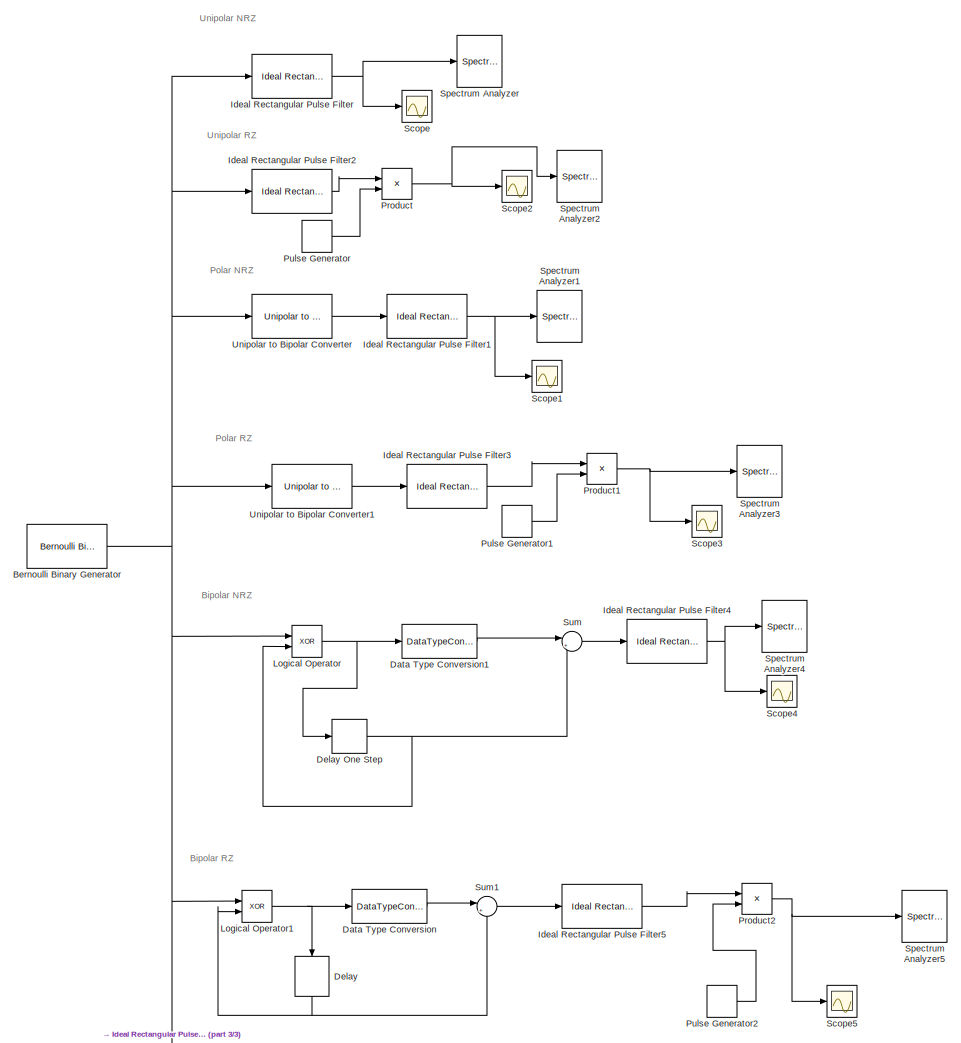
[diagram: root canvas - part 1/3, middle right region]
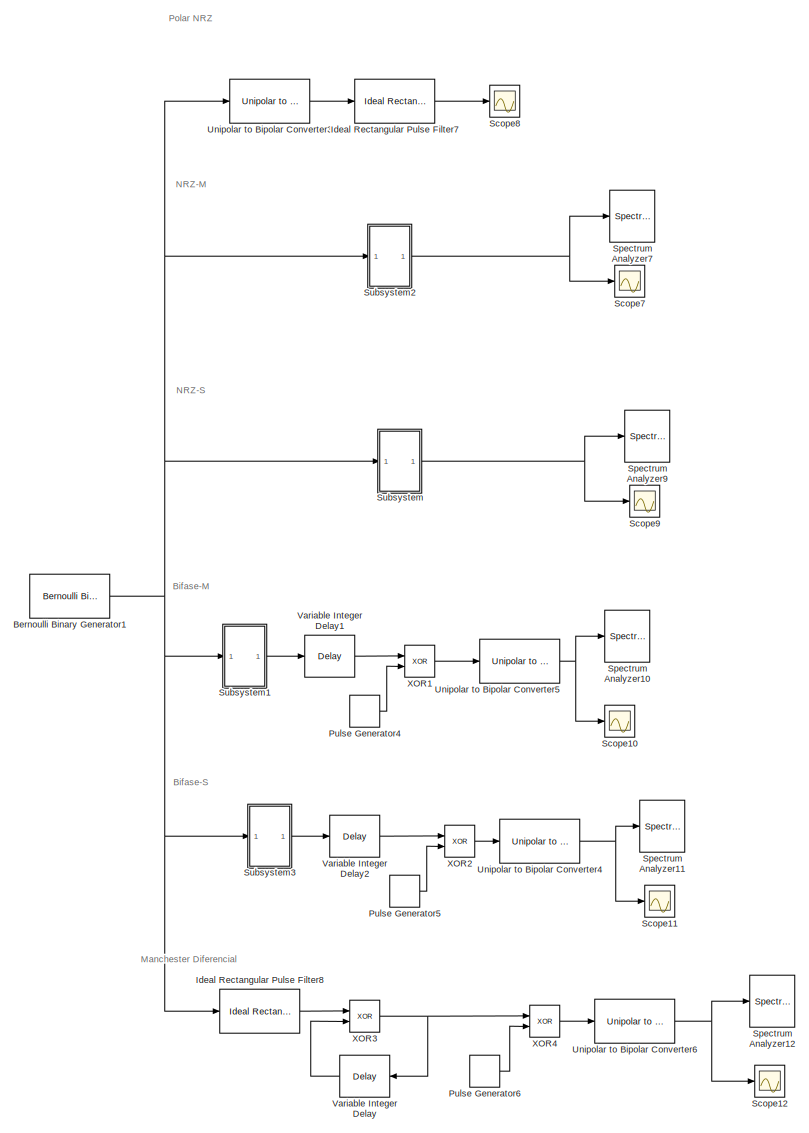
[diagram: root canvas - part 2/3, left side, full height]
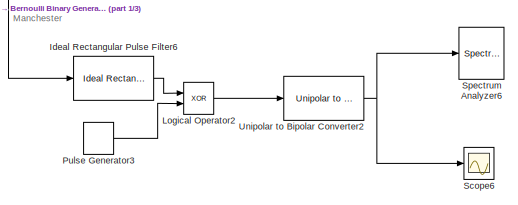
[diagram: root canvas - part 3/3, bottom right region]
MODEL slx_12218850f72d
KIND model
CONFIG AbsTol = auto
CONFIG EnableMultiTasking = on
CONFIG FixedStep = 0.00001
CONFIG MaxStep = auto
CONFIG MinStep = auto
CONFIG RelTol = 1e-3
CONFIG SampleTimeConstraint = Unconstrained
CONFIG Solver = FixedStepDiscrete
CONFIG SolverName = FixedStepDiscrete
CONFIG StartTime = 0.0
CONFIG StopTime = 25
BLOCK [Reference] Bernoulli Binary Generator  REF=commrandsrc3/Bernoulli Binary
Generator
  Commented = on
  Ports = [0, 1]
  SourceBlock = commrandsrc3/Bernoulli Binary\nGenerator
  SourceProductBaseCode = CM
  SourceType = Bernoulli Binary Generator
BLOCK [Reference] Bernoulli Binary Generator1  REF=commrandsrc3/Bernoulli Binary
Generator
  Ports = [0, 1]
  SourceBlock = commrandsrc3/Bernoulli Binary\nGenerator
  SourceProductBaseCode = CM
  SourceType = Bernoulli Binary Generator
BLOCK [DataTypeConversion] Data Type Conversion
  Commented = on
  OutDataTypeStr = double
  RndMeth = Floor
  SaturateOnIntegerOverflow = off
BLOCK [DataTypeConversion] Data Type Conversion1
  Commented = on
  OutDataTypeStr = double
  RndMeth = Floor
  SaturateOnIntegerOverflow = off
BLOCK [Delay] Delay
  Commented = on
  DelayLength = 1
  InitialCondition = 0
  InputPortMap = u0
  NameLocation = left
  Ports = [1, 1]
BLOCK [Delay] Delay One Step
  Commented = on
  DelayLength = 1
  InputPortMap = u0
  Ports = [1, 1]
BLOCK [Reference] Ideal Rectangular Pulse Filter  REF=commfilt2/Ideal Rectangular
Pulse Filter
  Commented = on
  Ports = [1, 1]
  SourceBlock = commfilt2/Ideal Rectangular\nPulse Filter
  SourceProductBaseCode = CM
  SourceType = Ideal Rectangular Pulse Filter
  UserDataPersistent = on
BLOCK [Reference] Ideal Rectangular Pulse Filter1  REF=commfilt2/Ideal Rectangular
Pulse Filter
  Commented = on
  Ports = [1, 1]
  SourceBlock = commfilt2/Ideal Rectangular\nPulse Filter
  SourceProductBaseCode = CM
  SourceType = Ideal Rectangular Pulse Filter
  UserDataPersistent = on
BLOCK [Reference] Ideal Rectangular Pulse Filter2  REF=commfilt2/Ideal Rectangular
Pulse Filter
  Commented = on
  Ports = [1, 1]
  SourceBlock = commfilt2/Ideal Rectangular\nPulse Filter
  SourceProductBaseCode = CM
  SourceType = Ideal Rectangular Pulse Filter
  UserDataPersistent = on
BLOCK [Reference] Ideal Rectangular Pulse Filter3  REF=commfilt2/Ideal Rectangular
Pulse Filter
  Commented = on
  Ports = [1, 1]
  SourceBlock = commfilt2/Ideal Rectangular\nPulse Filter
  SourceProductBaseCode = CM
  SourceType = Ideal Rectangular Pulse Filter
  UserDataPersistent = on
BLOCK [Reference] Ideal Rectangular Pulse Filter4  REF=commfilt2/Ideal Rectangular
Pulse Filter
  Commented = on
  Ports = [1, 1]
  SourceBlock = commfilt2/Ideal Rectangular\nPulse Filter
  SourceProductBaseCode = CM
  SourceType = Ideal Rectangular Pulse Filter
  UserDataPersistent = on
BLOCK [Reference] Ideal Rectangular Pulse Filter5  REF=commfilt2/Ideal Rectangular
Pulse Filter
  Commented = on
  Ports = [1, 1]
  SourceBlock = commfilt2/Ideal Rectangular\nPulse Filter
  SourceProductBaseCode = CM
  SourceType = Ideal Rectangular Pulse Filter
  UserDataPersistent = on
BLOCK [Reference] Ideal Rectangular Pulse Filter6  REF=commfilt2/Ideal Rectangular
Pulse Filter
  Commented = on
  Ports = [1, 1]
  SourceBlock = commfilt2/Ideal Rectangular\nPulse Filter
  SourceProductBaseCode = CM
  SourceType = Ideal Rectangular Pulse Filter
  UserDataPersistent = on
BLOCK [Reference] Ideal Rectangular Pulse Filter7  REF=commfilt2/Ideal Rectangular
Pulse Filter
  Ports = [1, 1]
  SourceBlock = commfilt2/Ideal Rectangular\nPulse Filter
  SourceProductBaseCode = CM
  SourceType = Ideal Rectangular Pulse Filter
  UserDataPersistent = on
BLOCK [Reference] Ideal Rectangular Pulse Filter8  REF=commfilt2/Ideal Rectangular
Pulse Filter
  Ports = [1, 1]
  SourceBlock = commfilt2/Ideal Rectangular\nPulse Filter
  SourceProductBaseCode = CM
  SourceType = Ideal Rectangular Pulse Filter
  UserDataPersistent = on
BLOCK [Logic] Logical Operator
  AllPortsSameDT = off
  Commented = on
  IconShape = distinctive
  Operator = XOR
  OutDataTypeStr = boolean
  Ports = [2, 1]
BLOCK [Logic] Logical Operator1
  AllPortsSameDT = off
  Commented = on
  IconShape = distinctive
  Operator = XOR
  OutDataTypeStr = boolean
  Ports = [2, 1]
BLOCK [Logic] Logical Operator2
  AllPortsSameDT = off
  Commented = on
  IconShape = distinctive
  Operator = XOR
  OutDataTypeStr = boolean
  Ports = [2, 1]
BLOCK [Product] Product
  Commented = on
  Ports = [2, 1]
BLOCK [Product] Product1
  Commented = on
  Ports = [2, 1]
BLOCK [Product] Product2
  Commented = on
  Ports = [2, 1]
BLOCK [DiscretePulseGenerator] Pulse Generator
  Commented = on
  Period = 100
  Ports = [0, 1]
  PulseWidth = 50
  SampleTime = 0.00001
BLOCK [DiscretePulseGenerator] Pulse Generator1
  Commented = on
  Period = 100
  Ports = [0, 1]
  PulseWidth = 50
  SampleTime = 0.00001
BLOCK [DiscretePulseGenerator] Pulse Generator2
  Commented = on
  Period = 100
  Ports = [0, 1]
  PulseWidth = 50
  SampleTime = 0.00001
BLOCK [DiscretePulseGenerator] Pulse Generator3
  Commented = on
  Period = 100
  Ports = [0, 1]
  PulseWidth = 50
  SampleTime = 0.00001
BLOCK [DiscretePulseGenerator] Pulse Generator4
  Period = 100
  Ports = [0, 1]
  PulseWidth = 50
  SampleTime = 0.00001
BLOCK [DiscretePulseGenerator] Pulse Generator5
  Period = 100
  Ports = [0, 1]
  PulseWidth = 50
  SampleTime = 0.00001
BLOCK [DiscretePulseGenerator] Pulse Generator6
  Period = 100
  Ports = [0, 1]
  PulseWidth = 50
  SampleTime = 0.00001
BLOCK [Scope] Scope
  Commented = on
  Floating = off
  NumInputPorts = 1
  Ports = [1]
  ScopeSpecificationString = Simulink.scopes.TimeScopeBlockCfg('CurrentConfiguration', extmgr.ConfigurationSet(extmgr.Configuration('Core','General UI',true,'FigureColor',[1 1 1]),extmgr.Configuration('Core','Source UI',true),extmgr.Configuration('Sources','WiredSimulink',true),extmgr.Configuration('Visuals','Time Domain',true,'SerializedDisplays',{struct('MinYLimReal','-1.2','MaxYLimReal','1.2','YLabelReal','','MinYLimMag','...<+2275ch>
BLOCK [Scope] Scope1
  Commented = on
  Floating = off
  NumInputPorts = 1
  Ports = [1]
  ScopeSpecificationString = Simulink.scopes.TimeScopeBlockCfg('CurrentConfiguration', extmgr.ConfigurationSet(extmgr.Configuration('Core','General UI',true,'FigureColor',[1 1 1]),extmgr.Configuration('Core','Source UI',true),extmgr.Configuration('Sources','WiredSimulink',true,'DataLoggingVariableName','ScopeData1'),extmgr.Configuration('Visuals','Time Domain',true,'SerializedDisplays',{struct('MinYLimReal','-1.2','MaxYLimRea...<+2307ch>
BLOCK [Scope] Scope10
  Floating = off
  NumInputPorts = 1
  Ports = [1]
  ScopeSpecificationString = Simulink.scopes.TimeScopeBlockCfg('CurrentConfiguration', extmgr.ConfigurationSet(extmgr.Configuration('Core','General UI',true,'FigureColor',[1 1 1]),extmgr.Configuration('Core','Source UI',true),extmgr.Configuration('Sources','WiredSimulink',true,'DataLoggingVariableName','ScopeData4'),extmgr.Configuration('Visuals','Time Domain',true,'SerializedDisplays',{struct('MinYLimReal','-1.2','MaxYLimRea...<+2305ch>
BLOCK [Scope] Scope11
  Floating = off
  NumInputPorts = 1
  Ports = [1]
  ScopeSpecificationString = Simulink.scopes.TimeScopeBlockCfg('CurrentConfiguration', extmgr.ConfigurationSet(extmgr.Configuration('Core','General UI',true,'FigureColor',[1 1 1]),extmgr.Configuration('Core','Source UI',true),extmgr.Configuration('Sources','WiredSimulink',true,'DataLoggingVariableName','ScopeData5'),extmgr.Configuration('Visuals','Time Domain',true,'SerializedDisplays',{struct('MinYLimReal','-1.2','MaxYLimRea...<+2305ch>
BLOCK [Scope] Scope12
  Floating = off
  NumInputPorts = 1
  Ports = [1]
  ScopeSpecificationString = Simulink.scopes.TimeScopeBlockCfg('CurrentConfiguration', extmgr.ConfigurationSet(extmgr.Configuration('Core','General UI',true,'FigureColor',[1 1 1]),extmgr.Configuration('Core','Source UI',true),extmgr.Configuration('Sources','WiredSimulink',true,'DataLoggingVariableName','ScopeData6'),extmgr.Configuration('Visuals','Time Domain',true,'SerializedDisplays',{struct('MinYLimReal','-1.2','MaxYLimRea...<+2333ch>
BLOCK [Scope] Scope2
  Commented = on
  Floating = off
  NumInputPorts = 1
  Ports = [1]
  ScopeSpecificationString = Simulink.scopes.TimeScopeBlockCfg('CurrentConfiguration', extmgr.ConfigurationSet(extmgr.Configuration('Core','General UI',true,'FigureColor',[1 1 1]),extmgr.Configuration('Core','Source UI',true),extmgr.Configuration('Sources','WiredSimulink',true,'DataLoggingVariableName','ScopeData1'),extmgr.Configuration('Visuals','Time Domain',true,'SerializedDisplays',{struct('MinYLimReal','-1.2','MaxYLimRea...<+2288ch>
BLOCK [Scope] Scope3
  Commented = on
  Floating = off
  NumInputPorts = 1
  Ports = [1]
  ScopeSpecificationString = Simulink.scopes.TimeScopeBlockCfg('CurrentConfiguration', extmgr.ConfigurationSet(extmgr.Configuration('Core','General UI',true,'FigureColor',[1 1 1]),extmgr.Configuration('Core','Source UI',true),extmgr.Configuration('Sources','WiredSimulink',true,'DataLoggingVariableName','ScopeData3'),extmgr.Configuration('Visuals','Time Domain',true,'SerializedDisplays',{struct('MinYLimReal','-1.2','MaxYLimRea...<+2283ch>
BLOCK [Scope] Scope4
  Commented = on
  Floating = off
  NumInputPorts = 1
  Ports = [1]
  ScopeSpecificationString = Simulink.scopes.TimeScopeBlockCfg('CurrentConfiguration', extmgr.ConfigurationSet(extmgr.Configuration('Core','General UI',true,'FigureColor',[1 1 1]),extmgr.Configuration('Core','Source UI',true),extmgr.Configuration('Sources','WiredSimulink',true,'DataLoggingVariableName','ScopeData4'),extmgr.Configuration('Visuals','Time Domain',true,'SerializedDisplays',{struct('MinYLimReal','-1.2','MaxYLimRea...<+2333ch>
BLOCK [Scope] Scope5
  Commented = on
  Floating = off
  NumInputPorts = 1
  Ports = [1]
  ScopeSpecificationString = Simulink.scopes.TimeScopeBlockCfg('CurrentConfiguration', extmgr.ConfigurationSet(extmgr.Configuration('Core','General UI',true,'FigureColor',[1 1 1]),extmgr.Configuration('Core','Source UI',true),extmgr.Configuration('Sources','WiredSimulink',true,'DataLoggingVariableName','ScopeData5'),extmgr.Configuration('Visuals','Time Domain',true,'SerializedDisplays',{struct('MinYLimReal','-1.2','MaxYLimRea...<+2308ch>
BLOCK [Scope] Scope6
  Commented = on
  Floating = off
  NumInputPorts = 1
  Ports = [1]
  ScopeSpecificationString = Simulink.scopes.TimeScopeBlockCfg('CurrentConfiguration', extmgr.ConfigurationSet(extmgr.Configuration('Core','General UI',true,'FigureColor',[1 1 1]),extmgr.Configuration('Core','Source UI',true),extmgr.Configuration('Sources','WiredSimulink',true,'DataLoggingVariableName','ScopeData6'),extmgr.Configuration('Visuals','Time Domain',true,'SerializedDisplays',{struct('MinYLimReal','-1.2','MaxYLimRea...<+2331ch>
BLOCK [Scope] Scope7
  Floating = off
  NumInputPorts = 1
  Ports = [1]
  ScopeSpecificationString = Simulink.scopes.TimeScopeBlockCfg('CurrentConfiguration', extmgr.ConfigurationSet(extmgr.Configuration('Core','General UI',true,'FigureColor',[1 1 1]),extmgr.Configuration('Core','Source UI',true),extmgr.Configuration('Sources','WiredSimulink',true,'DataLoggingVariableName','ScopeData1'),extmgr.Configuration('Visuals','Time Domain',true,'SerializedDisplays',{struct('MinYLimReal','-1.2','MaxYLimRea...<+2279ch>
BLOCK [Scope] Scope8
  Floating = off
  NumInputPorts = 1
  Ports = [1]
  ScopeSpecificationString = Simulink.scopes.TimeScopeBlockCfg('CurrentConfiguration', extmgr.ConfigurationSet(extmgr.Configuration('Core','General UI',true,'FigureColor',[1 1 1]),extmgr.Configuration('Core','Source UI',true),extmgr.Configuration('Sources','WiredSimulink',true,'DataLoggingVariableName','ScopeData2'),extmgr.Configuration('Visuals','Time Domain',true,'SerializedDisplays',{struct('MinYLimReal','-1.2','MaxYLimRea...<+2309ch>
BLOCK [Scope] Scope9
  Floating = off
  NumInputPorts = 1
  Ports = [1]
  ScopeSpecificationString = Simulink.scopes.TimeScopeBlockCfg('CurrentConfiguration', extmgr.ConfigurationSet(extmgr.Configuration('Core','General UI',true,'FigureColor',[1 1 1]),extmgr.Configuration('Core','Source UI',true),extmgr.Configuration('Sources','WiredSimulink',true,'DataLoggingVariableName','ScopeData3'),extmgr.Configuration('Visuals','Time Domain',true,'SerializedDisplays',{struct('MinYLimReal','-1.2','MaxYLimRea...<+2278ch>
BLOCK [SpectrumAnalyzer] Spectrum Analyzer
  Commented = on
  Ports = [1]
  ScopeSpecificationString = spbscopes.SpectrumAnalyzerBlockCfg('CurrentConfiguration', extmgr.ConfigurationSet(extmgr.Configuration('Core','General UI',true,'FigureColor',[1 1 1]),extmgr.Configuration('Core','Source UI',true),extmgr.Configuration('Sources','WiredSimulink',true),extmgr.Configuration('Sources','SimulinkEvent',false),extmgr.Configuration('Sources','Simulink',false),extmgr.Configuration('Sources','SPTool',false)...<+3632ch>  <repeated x7 — deduplicated; at blocks: Spectrum Analyzer, Spectrum Analyzer11, Spectrum Analyzer12, Spectrum Analyzer2, Spectrum Analyzer3, Spectrum Analyzer4, Spectrum Analyzer7>
BLOCK [SpectrumAnalyzer] Spectrum Analyzer1
  Commented = on
  Ports = [1]
  ScopeSpecificationString = spbscopes.SpectrumAnalyzerBlockCfg('CurrentConfiguration', extmgr.ConfigurationSet(extmgr.Configuration('Core','General UI',true,'FigureColor',[1 1 1]),extmgr.Configuration('Core','Source UI',true),extmgr.Configuration('Sources','WiredSimulink',true),extmgr.Configuration('Sources','SimulinkEvent',false),extmgr.Configuration('Sources','Simulink',false),extmgr.Configuration('Sources','SPTool',false)...<+3631ch>  <repeated x4 — deduplicated; at blocks: Spectrum Analyzer1, Spectrum Analyzer10, Spectrum Analyzer5, Spectrum Analyzer6>
BLOCK [SpectrumAnalyzer] Spectrum Analyzer10
  Ports = [1]
BLOCK [SpectrumAnalyzer] Spectrum Analyzer11
  Ports = [1]
BLOCK [SpectrumAnalyzer] Spectrum Analyzer12
  Ports = [1]
BLOCK [SpectrumAnalyzer] Spectrum Analyzer2
  Commented = on
  Ports = [1]
BLOCK [SpectrumAnalyzer] Spectrum Analyzer3
  Commented = on
  Ports = [1]
BLOCK [SpectrumAnalyzer] Spectrum Analyzer4
  Commented = on
  Ports = [1]
BLOCK [SpectrumAnalyzer] Spectrum Analyzer5
  Commented = on
  Ports = [1]
BLOCK [SpectrumAnalyzer] Spectrum Analyzer6
  Commented = on
  Ports = [1]
BLOCK [SpectrumAnalyzer] Spectrum Analyzer7
  Ports = [1]
BLOCK [SpectrumAnalyzer] Spectrum Analyzer9
  Ports = [1]
  ScopeSpecificationString = spbscopes.SpectrumAnalyzerBlockCfg('CurrentConfiguration', extmgr.ConfigurationSet(extmgr.Configuration('Core','General UI',true,'FigureColor',[1 1 1]),extmgr.Configuration('Core','Source UI',true),extmgr.Configuration('Sources','WiredSimulink',true),extmgr.Configuration('Sources','SimulinkEvent',false),extmgr.Configuration('Sources','Simulink',false),extmgr.Configuration('Sources','SPTool',false)...<+3630ch>
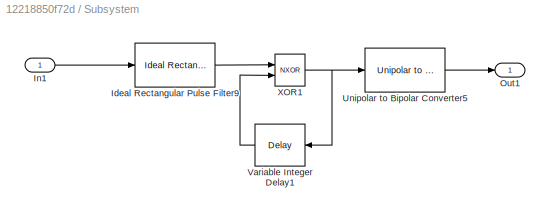
BLOCK [SubSystem] Subsystem
  Ports = [1, 1]
  RequestExecContextInheritance = off
BLOCK [Reference] Subsystem/Ideal Rectangular Pulse Filter9  REF=commfilt2/Ideal Rectangular
Pulse Filter
  Ports = [1, 1]
  SourceBlock = commfilt2/Ideal Rectangular\nPulse Filter
  SourceProductBaseCode = CM
  SourceType = Ideal Rectangular Pulse Filter
  UserDataPersistent = on
BLOCK [Inport] Subsystem/In1
BLOCK [Outport] Subsystem/Out1
BLOCK [Reference] Subsystem/Unipolar to Bipolar Converter5  REF=commutil2/Unipolar to
Bipolar
Converter
  Ports = [1, 1]
  SourceBlock = commutil2/Unipolar to\nBipolar\nConverter
  SourceProductBaseCode = CM
  SourceType = Unipolar to Bipolar Converter
BLOCK [Delay] Subsystem/Variable Integer Delay1
  DelayLength = 100
  InputPortMap = u0
  Ports = [1, 1]
BLOCK [Logic] Subsystem/XOR1
  AllPortsSameDT = off
  IconShape = distinctive
  Operator = NXOR
  OutDataTypeStr = boolean
  Ports = [2, 1]
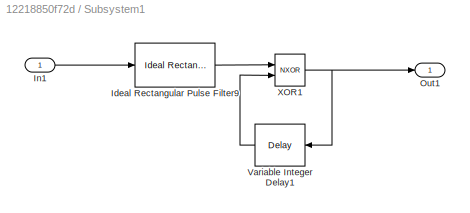
BLOCK [SubSystem] Subsystem1
  Ports = [1, 1]
  RequestExecContextInheritance = off
BLOCK [Reference] Subsystem1/Ideal Rectangular Pulse Filter9  REF=commfilt2/Ideal Rectangular
Pulse Filter
  Ports = [1, 1]
  SourceBlock = commfilt2/Ideal Rectangular\nPulse Filter
  SourceProductBaseCode = CM
  SourceType = Ideal Rectangular Pulse Filter
  UserDataPersistent = on
BLOCK [Inport] Subsystem1/In1
BLOCK [Outport] Subsystem1/Out1
BLOCK [Delay] Subsystem1/Variable Integer Delay1
  DelayLength = 100
  InputPortMap = u0
  Ports = [1, 1]
BLOCK [Logic] Subsystem1/XOR1
  AllPortsSameDT = off
  IconShape = distinctive
  Operator = NXOR
  OutDataTypeStr = boolean
  Ports = [2, 1]
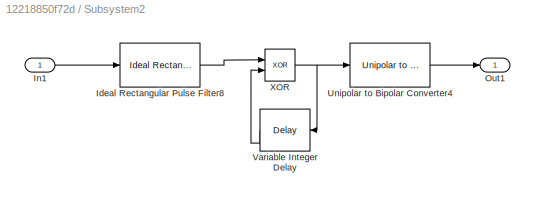
BLOCK [SubSystem] Subsystem2
  Ports = [1, 1]
  RequestExecContextInheritance = off
BLOCK [Reference] Subsystem2/Ideal Rectangular Pulse Filter8  REF=commfilt2/Ideal Rectangular
Pulse Filter
  Ports = [1, 1]
  SourceBlock = commfilt2/Ideal Rectangular\nPulse Filter
  SourceProductBaseCode = CM
  SourceType = Ideal Rectangular Pulse Filter
  UserDataPersistent = on
BLOCK [Inport] Subsystem2/In1
BLOCK [Outport] Subsystem2/Out1
BLOCK [Reference] Subsystem2/Unipolar to Bipolar Converter4  REF=commutil2/Unipolar to
Bipolar
Converter
  Ports = [1, 1]
  SourceBlock = commutil2/Unipolar to\nBipolar\nConverter
  SourceProductBaseCode = CM
  SourceType = Unipolar to Bipolar Converter
BLOCK [Delay] Subsystem2/Variable Integer Delay
  DelayLength = 100
  InputPortMap = u0
  Ports = [1, 1]
BLOCK [Logic] Subsystem2/XOR
  AllPortsSameDT = off
  IconShape = distinctive
  Operator = XOR
  OutDataTypeStr = boolean
  Ports = [2, 1]
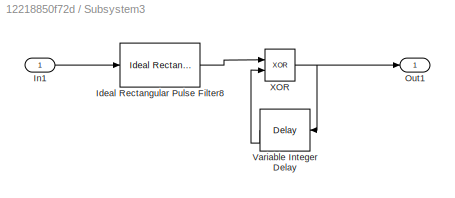
BLOCK [SubSystem] Subsystem3
  Ports = [1, 1]
  RequestExecContextInheritance = off
BLOCK [Reference] Subsystem3/Ideal Rectangular Pulse Filter8  REF=commfilt2/Ideal Rectangular
Pulse Filter
  Ports = [1, 1]
  SourceBlock = commfilt2/Ideal Rectangular\nPulse Filter
  SourceProductBaseCode = CM
  SourceType = Ideal Rectangular Pulse Filter
  UserDataPersistent = on
BLOCK [Inport] Subsystem3/In1
BLOCK [Outport] Subsystem3/Out1
BLOCK [Delay] Subsystem3/Variable Integer Delay
  DelayLength = 100
  InputPortMap = u0
  Ports = [1, 1]
BLOCK [Logic] Subsystem3/XOR
  AllPortsSameDT = off
  IconShape = distinctive
  Operator = XOR
  OutDataTypeStr = boolean
  Ports = [2, 1]
BLOCK [Sum] Sum
  Commented = on
  Inputs = |+-
  Ports = [2, 1]
BLOCK [Sum] Sum1
  Commented = on
  Inputs = |+-
  Ports = [2, 1]
BLOCK [Reference] Unipolar to Bipolar Converter  REF=commutil2/Unipolar to
Bipolar
Converter
  Commented = on
  Ports = [1, 1]
  SourceBlock = commutil2/Unipolar to\nBipolar\nConverter
  SourceProductBaseCode = CM
  SourceType = Unipolar to Bipolar Converter
BLOCK [Reference] Unipolar to Bipolar Converter1  REF=commutil2/Unipolar to
Bipolar
Converter
  Commented = on
  Ports = [1, 1]
  SourceBlock = commutil2/Unipolar to\nBipolar\nConverter
  SourceProductBaseCode = CM
  SourceType = Unipolar to Bipolar Converter
BLOCK [Reference] Unipolar to Bipolar Converter2  REF=commutil2/Unipolar to
Bipolar
Converter
  Commented = on
  Ports = [1, 1]
  SourceBlock = commutil2/Unipolar to\nBipolar\nConverter
  SourceProductBaseCode = CM
  SourceType = Unipolar to Bipolar Converter
BLOCK [Reference] Unipolar to Bipolar Converter3  REF=commutil2/Unipolar to
Bipolar
Converter
  Ports = [1, 1]
  SourceBlock = commutil2/Unipolar to\nBipolar\nConverter
  SourceProductBaseCode = CM
  SourceType = Unipolar to Bipolar Converter
BLOCK [Reference] Unipolar to Bipolar Converter4  REF=commutil2/Unipolar to
Bipolar
Converter
  Ports = [1, 1]
  SourceBlock = commutil2/Unipolar to\nBipolar\nConverter
  SourceProductBaseCode = CM
  SourceType = Unipolar to Bipolar Converter
BLOCK [Reference] Unipolar to Bipolar Converter5  REF=commutil2/Unipolar to
Bipolar
Converter
  Ports = [1, 1]
  SourceBlock = commutil2/Unipolar to\nBipolar\nConverter
  SourceProductBaseCode = CM
  SourceType = Unipolar to Bipolar Converter
BLOCK [Reference] Unipolar to Bipolar Converter6  REF=commutil2/Unipolar to
Bipolar
Converter
  Ports = [1, 1]
  SourceBlock = commutil2/Unipolar to\nBipolar\nConverter
  SourceProductBaseCode = CM
  SourceType = Unipolar to Bipolar Converter
BLOCK [Delay] Variable Integer Delay
  DelayLength = 100
  InputPortMap = u0
  Ports = [1, 1]
BLOCK [Delay] Variable Integer Delay1
  DelayLength = 50
  InputPortMap = u0
  Ports = [1, 1]
BLOCK [Delay] Variable Integer Delay2
  DelayLength = 50
  InputPortMap = u0
  Ports = [1, 1]
BLOCK [Logic] XOR1
  AllPortsSameDT = off
  IconShape = distinctive
  Operator = XOR
  OutDataTypeStr = boolean
  Ports = [2, 1]
BLOCK [Logic] XOR2
  AllPortsSameDT = off
  IconShape = distinctive
  Operator = XOR
  OutDataTypeStr = boolean
  Ports = [2, 1]
BLOCK [Logic] XOR3
  AllPortsSameDT = off
  IconShape = distinctive
  Operator = XOR
  OutDataTypeStr = boolean
  Ports = [2, 1]
BLOCK [Logic] XOR4
  AllPortsSameDT = off
  IconShape = distinctive
  Operator = XOR
  OutDataTypeStr = boolean
  Ports = [2, 1]
ANNOTATION (root): Bifase-M
ANNOTATION (root): Bifase-S
ANNOTATION (root): Bipolar NRZ
ANNOTATION (root): Bipolar RZ
ANNOTATION (root): Manchester
ANNOTATION (root): Manchester Diferencial
ANNOTATION (root): NRZ-M
ANNOTATION (root): NRZ-S
ANNOTATION (root): Polar NRZ
ANNOTATION (root): Polar RZ
ANNOTATION (root): Unipolar RZ
ANNOTATION (root): Unipolar NRZ
NET Bernoulli Binary Generator1:1 -> Ideal Rectangular Pulse Filter8:1, Subsystem1:1, Subsystem2:1, Subsystem3:1, Subsystem:1, Unipolar to Bipolar Converter3:1
NET Bernoulli Binary Generator:1 -> Ideal Rectangular Pulse Filter2:1, Ideal Rectangular Pulse Filter6:1, Ideal Rectangular Pulse Filter:1, Logical Operator1:1, Logical Operator:1, Unipolar to Bipolar Converter1:1, Unipolar to Bipolar Converter:1
LINE Data Type Conversion1:1 -> Sum:1
LINE Data Type Conversion:1 -> Sum1:1
NET Delay One Step:1 -> Logical Operator:2, Sum:2
NET Delay:1 -> Logical Operator1:2, Sum1:2
NET Ideal Rectangular Pulse Filter1:1 -> Scope1:1, Spectrum Analyzer1:1
LINE Ideal Rectangular Pulse Filter2:1 -> Product:1
LINE Ideal Rectangular Pulse Filter3:1 -> Product1:1
NET Ideal Rectangular Pulse Filter4:1 -> Scope4:1, Spectrum Analyzer4:1
LINE Ideal Rectangular Pulse Filter5:1 -> Product2:1
LINE Ideal Rectangular Pulse Filter6:1 -> Logical Operator2:1
LINE Ideal Rectangular Pulse Filter7:1 -> Scope8:1
LINE Ideal Rectangular Pulse Filter8:1 -> XOR3:1
NET Ideal Rectangular Pulse Filter:1 -> Scope:1, Spectrum Analyzer:1
NET Logical Operator1:1 -> Data Type Conversion:1, Delay:1
LINE Logical Operator2:1 -> Unipolar to Bipolar Converter2:1
NET Logical Operator:1 -> Data Type Conversion1:1, Delay One Step:1
NET Product1:1 -> Scope3:1, Spectrum Analyzer3:1
NET Product2:1 -> Scope5:1, Spectrum Analyzer5:1
NET Product:1 -> Scope2:1, Spectrum Analyzer2:1
LINE Pulse Generator1:1 -> Product1:2
LINE Pulse Generator2:1 -> Product2:2
LINE Pulse Generator3:1 -> Logical Operator2:2
LINE Pulse Generator4:1 -> XOR1:2
LINE Pulse Generator5:1 -> XOR2:2
LINE Pulse Generator6:1 -> XOR4:2
LINE Pulse Generator:1 -> Product:2
LINE Subsystem/Ideal Rectangular Pulse Filter9:1 -> Subsystem/XOR1:1
LINE Subsystem/In1:1 -> Subsystem/Ideal Rectangular Pulse Filter9:1
LINE Subsystem/Unipolar to Bipolar Converter5:1 -> Subsystem/Out1:1
LINE Subsystem/Variable Integer Delay1:1 -> Subsystem/XOR1:2
NET Subsystem/XOR1:1 -> Subsystem/Unipolar to Bipolar Converter5:1, Subsystem/Variable Integer Delay1:1
LINE Subsystem1/Ideal Rectangular Pulse Filter9:1 -> Subsystem1/XOR1:1
LINE Subsystem1/In1:1 -> Subsystem1/Ideal Rectangular Pulse Filter9:1
LINE Subsystem1/Variable Integer Delay1:1 -> Subsystem1/XOR1:2
NET Subsystem1/XOR1:1 -> Subsystem1/Out1:1, Subsystem1/Variable Integer Delay1:1
LINE Subsystem1:1 -> Variable Integer Delay1:1
LINE Subsystem2/Ideal Rectangular Pulse Filter8:1 -> Subsystem2/XOR:1
LINE Subsystem2/In1:1 -> Subsystem2/Ideal Rectangular Pulse Filter8:1
LINE Subsystem2/Unipolar to Bipolar Converter4:1 -> Subsystem2/Out1:1
LINE Subsystem2/Variable Integer Delay:1 -> Subsystem2/XOR:2
NET Subsystem2/XOR:1 -> Subsystem2/Unipolar to Bipolar Converter4:1, Subsystem2/Variable Integer Delay:1
NET Subsystem2:1 -> Scope7:1, Spectrum Analyzer7:1
LINE Subsystem3/Ideal Rectangular Pulse Filter8:1 -> Subsystem3/XOR:1
LINE Subsystem3/In1:1 -> Subsystem3/Ideal Rectangular Pulse Filter8:1
LINE Subsystem3/Variable Integer Delay:1 -> Subsystem3/XOR:2
NET Subsystem3/XOR:1 -> Subsystem3/Out1:1, Subsystem3/Variable Integer Delay:1
LINE Subsystem3:1 -> Variable Integer Delay2:1
NET Subsystem:1 -> Scope9:1, Spectrum Analyzer9:1
LINE Sum1:1 -> Ideal Rectangular Pulse Filter5:1
LINE Sum:1 -> Ideal Rectangular Pulse Filter4:1
LINE Unipolar to Bipolar Converter1:1 -> Ideal Rectangular Pulse Filter3:1
NET Unipolar to Bipolar Converter2:1 -> Scope6:1, Spectrum Analyzer6:1
LINE Unipolar to Bipolar Converter3:1 -> Ideal Rectangular Pulse Filter7:1
NET Unipolar to Bipolar Converter4:1 -> Scope11:1, Spectrum Analyzer11:1
NET Unipolar to Bipolar Converter5:1 -> Scope10:1, Spectrum Analyzer10:1
NET Unipolar to Bipolar Converter6:1 -> Scope12:1, Spectrum Analyzer12:1
LINE Unipolar to Bipolar Converter:1 -> Ideal Rectangular Pulse Filter1:1
LINE Variable Integer Delay1:1 -> XOR1:1
LINE Variable Integer Delay2:1 -> XOR2:1
LINE Variable Integer Delay:1 -> XOR3:2
LINE XOR1:1 -> Unipolar to Bipolar Converter5:1
LINE XOR2:1 -> Unipolar to Bipolar Converter4:1
NET XOR3:1 -> Variable Integer Delay:1, XOR4:1
LINE XOR4:1 -> Unipolar to Bipolar Converter6:1
note: NET lines group one-source signal fan-out (src -> all destinations, sorted); 1:1 wires keep LINE
